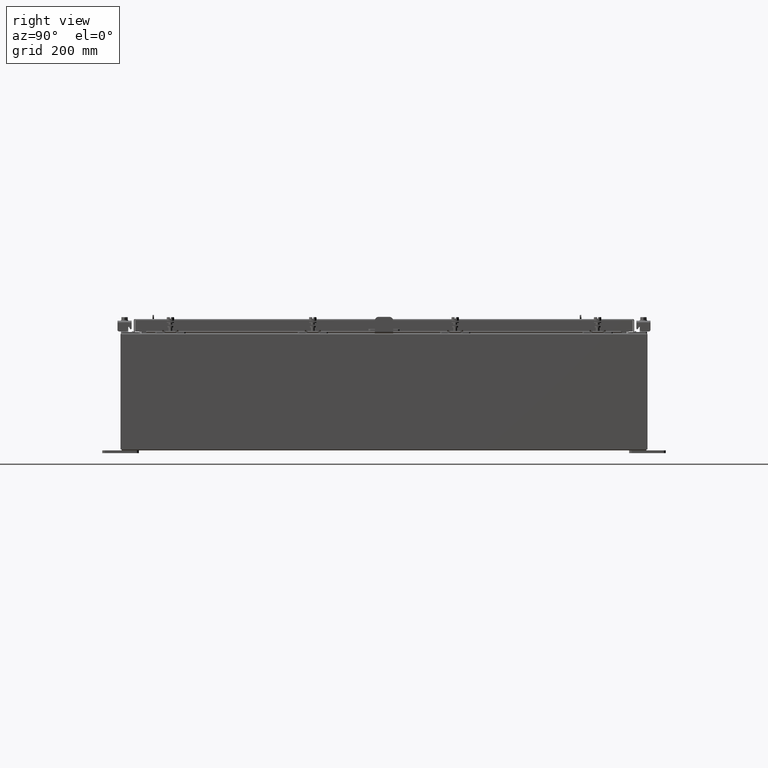
[diagram: clean part render]
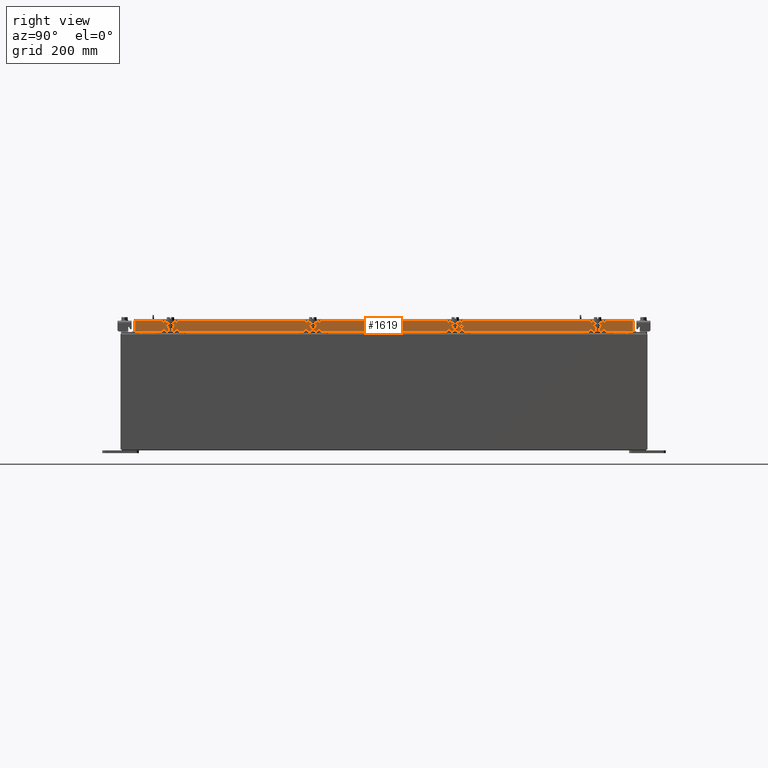
[diagram: same view with one face highlighted and labeled with its STEP entity id]
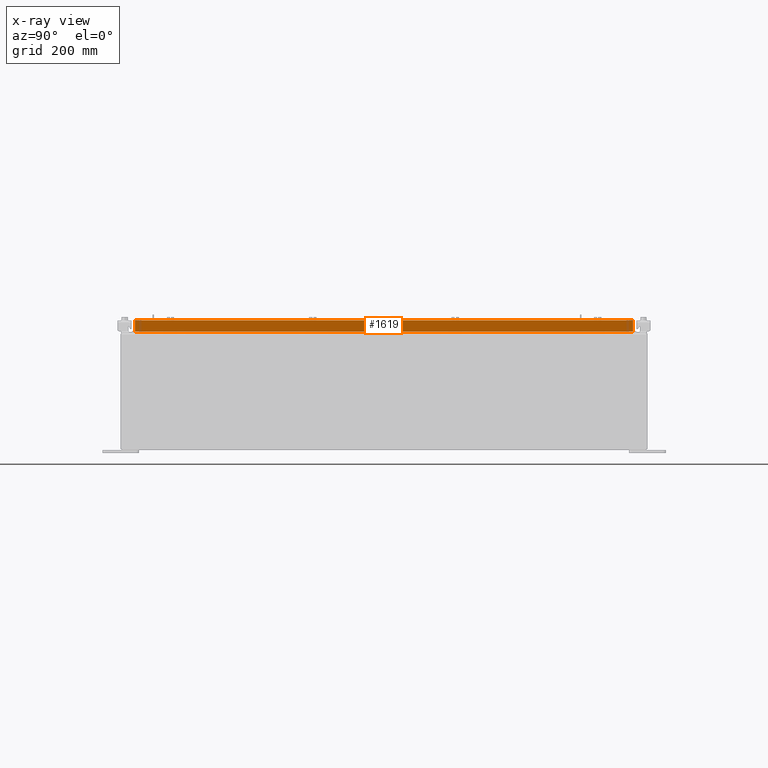
[diagram: x-ray of the same camera — body ghosted, the highlighted face saturated]
A machine part, right view. The second image highlights one B-rep face of the part: STEP entity #1619.
The next image is the same camera in x-ray: the body ghosted, the highlighted face saturated — about 0% of this face is hidden behind the body in this view.
In plain terms, the highlighted planar face has unit normal (1, 0, 0).
Its self-contained STEP definition (entity closure, byte-faithful):
#140 = CARTESIAN_POINT ( 'NONE',  ( 14.07799999999999600, 16.25515786437626900, -0.8499999999999999800 ) ) ;
#432 = DIRECTION ( 'NONE',  ( -2.818880942772360500E-015, -6.982962677686269100E-015, 1.000000000000000000 ) ) ;
#545 = CARTESIAN_POINT ( 'NONE',  ( 14.07799999999999600, 16.25515786437627200, -0.8499999999999999800 ) ) ;
#685 = VECTOR ( 'NONE', #23408, 39.37007874015748100 ) ;
#849 = VECTOR ( 'NONE', #17800, 39.37007874015748100 ) ;
#1424 = LINE ( 'NONE', #22508, #20937 ) ;
#1619 = ADVANCED_FACE ( 'NONE', ( #6660 ), #13967, .T. ) ;
#2412 = DIRECTION ( 'NONE',  ( 0.0000000000000000000, -1.000000000000000000, 0.0000000000000000000 ) ) ;
#2740 = CARTESIAN_POINT ( 'NONE',  ( 14.07799999999999900, -17.09400000000000100, -0.8499999999999999800 ) ) ;
#3077 = CARTESIAN_POINT ( 'NONE',  ( 14.07799999999999800, 17.00515786437626200, -0.08770000000000026400 ) ) ;
#3980 = ORIENTED_EDGE ( 'NONE', *, *, #18350, .F. ) ;
#5006 = ORIENTED_EDGE ( 'NONE', *, *, #11108, .F. ) ;
#6660 = FACE_OUTER_BOUND ( 'NONE', #21927, .T. ) ;
#7930 = CARTESIAN_POINT ( 'NONE',  ( 14.07799999999999800, -17.00515786437627200, -0.07470000000000015500 ) ) ;
#8406 = CARTESIAN_POINT ( 'NONE',  ( 14.07799999999999800, 0.0000000000000000000, -0.08770000000000026400 ) ) ;
#8507 = VECTOR ( 'NONE', #2412, 39.37007874015748100 ) ;
#9131 = CARTESIAN_POINT ( 'NONE',  ( 14.07799999999999900, 17.00515786437627200, -0.8499999999999999800 ) ) ;
#9562 = VERTEX_POINT ( 'NONE', #3077 ) ;
#9909 = VECTOR ( 'NONE', #432, 39.37007874015748100 ) ;
#10909 = DIRECTION ( 'NONE',  ( 2.818880942772360100E-015, 0.0000000000000000000, -1.000000000000000000 ) ) ;
#11108 = EDGE_CURVE ( 'NONE', #15740, #22261, #11300, .T. ) ;
#11169 = DIRECTION ( 'NONE',  ( -2.818880942772360500E-015, -6.982962677686269100E-015, 1.000000000000000000 ) ) ;
#11300 = LINE ( 'NONE', #17671, #685 ) ;
#12935 = LINE ( 'NONE', #545, #8507 ) ;
#13787 = DIRECTION ( 'NONE',  ( 0.0000000000000000000, -1.000000000000000000, 0.0000000000000000000 ) ) ;
#13967 = PLANE ( 'NONE',  #14799 ) ;
#14371 = EDGE_CURVE ( 'NONE', #9562, #24421, #15879, .T. ) ;
#14799 = AXIS2_PLACEMENT_3D ( 'NONE', #18860, #18159, #10909 ) ;
#14950 = CARTESIAN_POINT ( 'NONE',  ( 14.07799999999999900, -17.00515786437626900, -0.8499999999999999800 ) ) ;
#15740 = VERTEX_POINT ( 'NONE', #17747 ) ;
#15879 = LINE ( 'NONE', #8406, #849 ) ;
#16757 = VERTEX_POINT ( 'NONE', #9131 ) ;
#17256 = ORIENTED_EDGE ( 'NONE', *, *, #14371, .T. ) ;
#17671 = CARTESIAN_POINT ( 'NONE',  ( 14.07799999999999900, -17.09400000000000100, -0.8499999999999999800 ) ) ;
#17747 = CARTESIAN_POINT ( 'NONE',  ( 14.07799999999999600, -16.25515786437626900, -0.8499999999999999800 ) ) ;
#17800 = DIRECTION ( 'NONE',  ( 0.0000000000000000000, -1.000000000000000000, 0.0000000000000000000 ) ) ;
#18159 = DIRECTION ( 'NONE',  ( 1.000000000000000000, 0.0000000000000000000, 2.818880942772360100E-015 ) ) ;
#18350 = EDGE_CURVE ( 'NONE', #16757, #19977, #18385, .T. ) ;
#18385 = LINE ( 'NONE', #2740, #18998 ) ;
#18860 = CARTESIAN_POINT ( 'NONE',  ( 14.07799999999999800, 0.0000000000000000000, 4.043135030623109600E-014 ) ) ;
#18998 = VECTOR ( 'NONE', #13787, 39.37007874015748100 ) ;
#19977 = VERTEX_POINT ( 'NONE', #140 ) ;
#20584 = LINE ( 'NONE', #7930, #9909 ) ;
#20937 = VECTOR ( 'NONE', #11169, 39.37007874015748100 ) ;
#21134 = CARTESIAN_POINT ( 'NONE',  ( 14.07799999999999800, -17.00515786437627200, -0.08770000000000026400 ) ) ;
#21904 = EDGE_CURVE ( 'NONE', #19977, #15740, #12935, .T. ) ;
#21927 = EDGE_LOOP ( 'NONE', ( #24023, #5006, #22707, #3980, #22290, #17256 ) ) ;
#22243 = EDGE_CURVE ( 'NONE', #16757, #9562, #1424, .T. ) ;
#22261 = VERTEX_POINT ( 'NONE', #14950 ) ;
#22290 = ORIENTED_EDGE ( 'NONE', *, *, #22243, .T. ) ;
#22508 = CARTESIAN_POINT ( 'NONE',  ( 14.07799999999999800, 17.00515786437626500, 1.584471836325272600E-013 ) ) ;
#22707 = ORIENTED_EDGE ( 'NONE', *, *, #21904, .F. ) ;
#23408 = DIRECTION ( 'NONE',  ( 0.0000000000000000000, -1.000000000000000000, 0.0000000000000000000 ) ) ;
#23610 = EDGE_CURVE ( 'NONE', #22261, #24421, #20584, .T. ) ;
#24023 = ORIENTED_EDGE ( 'NONE', *, *, #23610, .F. ) ;
#24421 = VERTEX_POINT ( 'NONE', #21134 ) ;